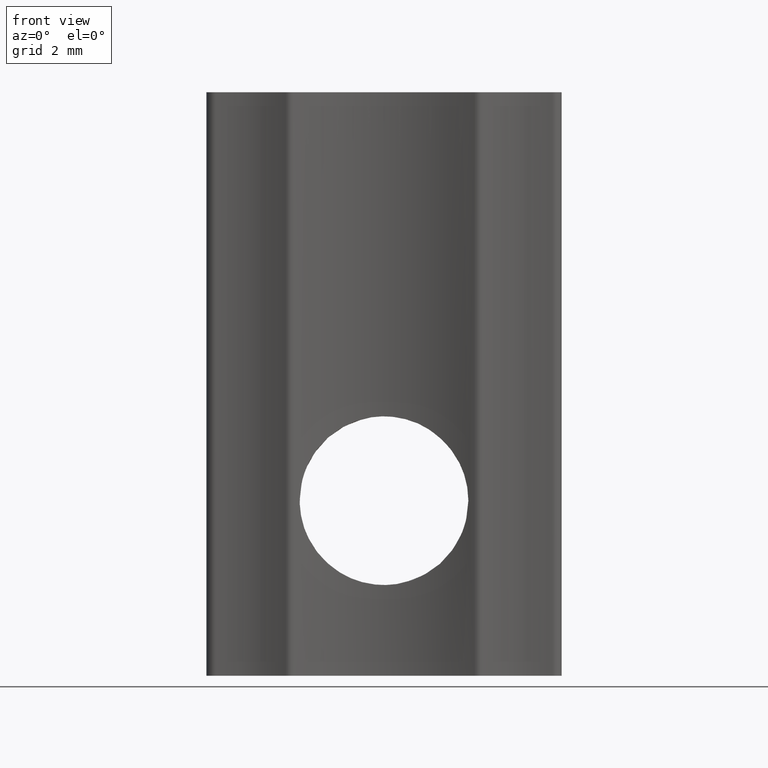
[diagram: clean part render]
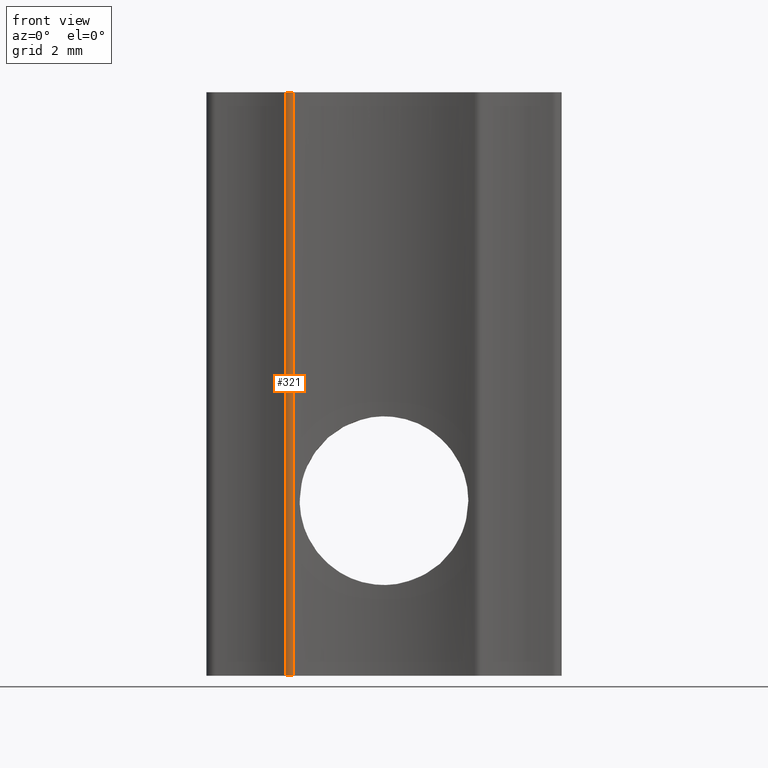
[diagram: same view with one face highlighted and labeled with its STEP entity id]
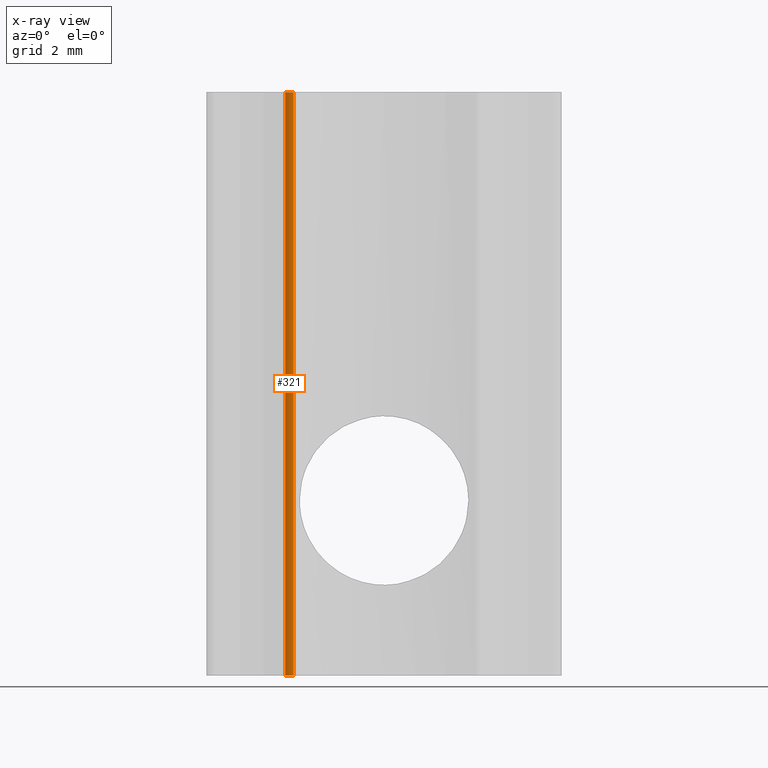
[diagram: x-ray of the same camera — body ghosted, the highlighted face saturated]
A machine part, front view. The second image highlights one B-rep face of the part: STEP entity #321.
The next image is the same camera in x-ray: the body ghosted, the highlighted face saturated — about 0% of this face is hidden behind the body in this view.
In plain terms, the highlighted cylindrical surface (edge-blend (fillet) strip) has radius 0.25 mm, axis along (0, 0, 1).
Its self-contained STEP definition (entity closure, byte-faithful):
#25=LINE('',#697,#40);
#26=LINE('',#700,#41);
#40=VECTOR('',#433,10.);
#41=VECTOR('',#436,10.);
#52=CYLINDRICAL_SURFACE('',#367,0.25);
#81=FACE_OUTER_BOUND('',#98,.T.);
#98=EDGE_LOOP('',(#261,#262,#263,#264));
#115=CIRCLE('',#368,0.25);
#116=CIRCLE('',#369,0.25);
#152=VERTEX_POINT('',#693);
#153=VERTEX_POINT('',#694);
#154=VERTEX_POINT('',#696);
#155=VERTEX_POINT('',#698);
#193=EDGE_CURVE('',#152,#153,#115,.T.);
#194=EDGE_CURVE('',#152,#154,#25,.T.);
#195=EDGE_CURVE('',#155,#154,#116,.T.);
#196=EDGE_CURVE('',#153,#155,#26,.T.);
#261=ORIENTED_EDGE('',*,*,#193,.F.);
#262=ORIENTED_EDGE('',*,*,#194,.T.);
#263=ORIENTED_EDGE('',*,*,#195,.F.);
#264=ORIENTED_EDGE('',*,*,#196,.F.);
#321=ADVANCED_FACE('',(#81),#52,.T.);
#367=AXIS2_PLACEMENT_3D('',#692,#429,#430);
#368=AXIS2_PLACEMENT_3D('',#695,#431,#432);
#369=AXIS2_PLACEMENT_3D('',#699,#434,#435);
#429=DIRECTION('center_axis',(0.,0.,1.));
#430=DIRECTION('ref_axis',(0.499578080536772,0.866268862101827,0.));
#431=DIRECTION('center_axis',(0.,0.,-1.));
#432=DIRECTION('ref_axis',(0.499578080536772,0.866268862101827,0.));
#433=DIRECTION('',(0.,0.,1.));
#434=DIRECTION('center_axis',(0.,0.,1.));
#435=DIRECTION('ref_axis',(0.499578080536772,0.866268862101827,0.));
#436=DIRECTION('',(0.,0.,1.));
#692=CARTESIAN_POINT('Origin',(-2.75,-0.387513919839087,0.));
#693=CARTESIAN_POINT('',(-2.64,-0.612013363045524,0.));
#694=CARTESIAN_POINT('',(-2.87489452013419,-0.604081135364544,0.));
#695=CARTESIAN_POINT('Origin',(-2.75,-0.387513919839087,0.));
#696=CARTESIAN_POINT('',(-2.64,-0.612013363045524,17.));
#697=CARTESIAN_POINT('',(-2.64,-0.612013363045524,0.));
#698=CARTESIAN_POINT('',(-2.87489452013419,-0.604081135364544,17.));
#699=CARTESIAN_POINT('Origin',(-2.75,-0.387513919839087,17.));
#700=CARTESIAN_POINT('',(-2.87489452013419,-0.604081135364544,0.));